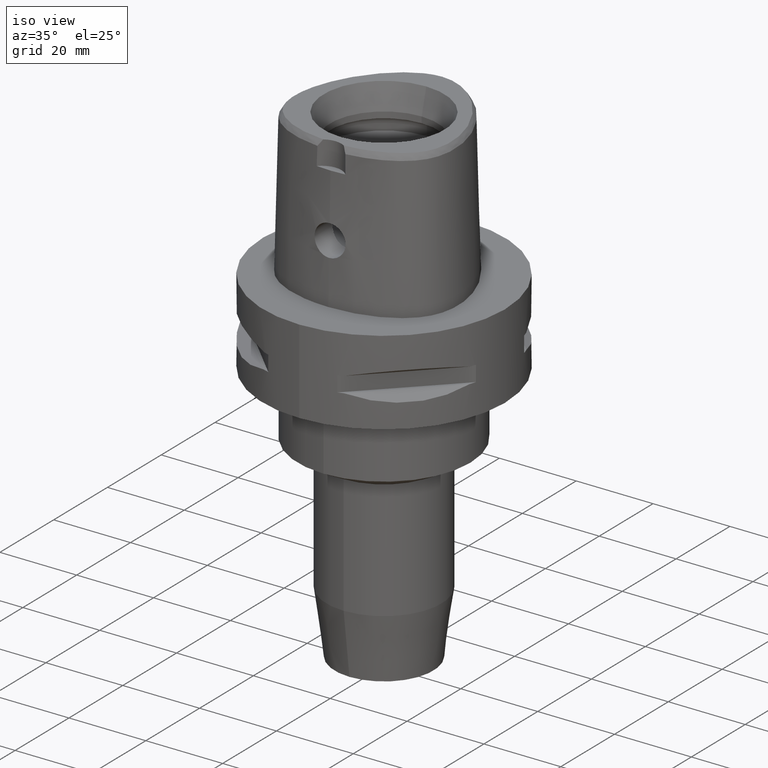
[diagram: clean part render]
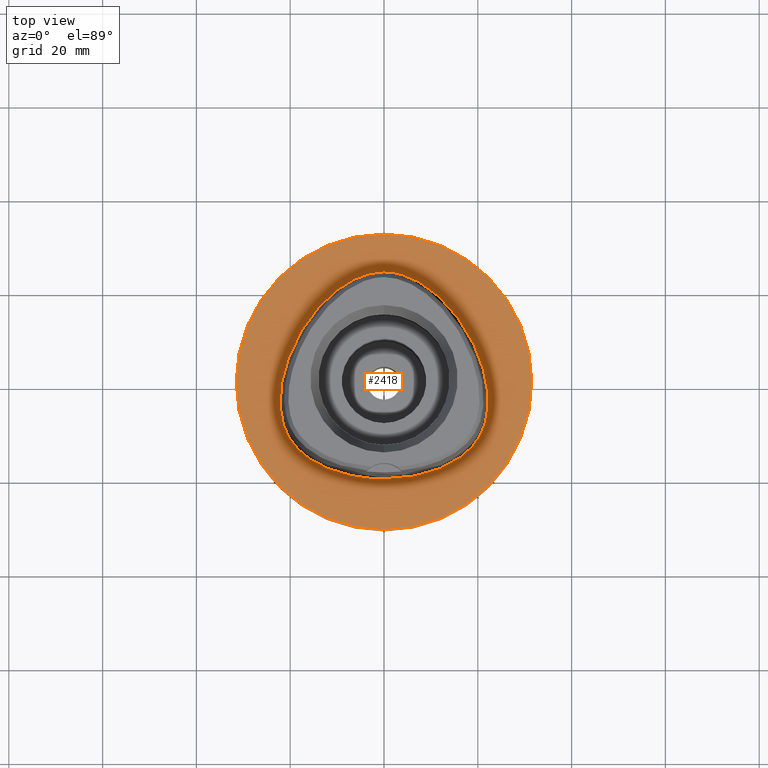
[diagram: tour spotlight — one face highlighted and labeled with its STEP entity id]
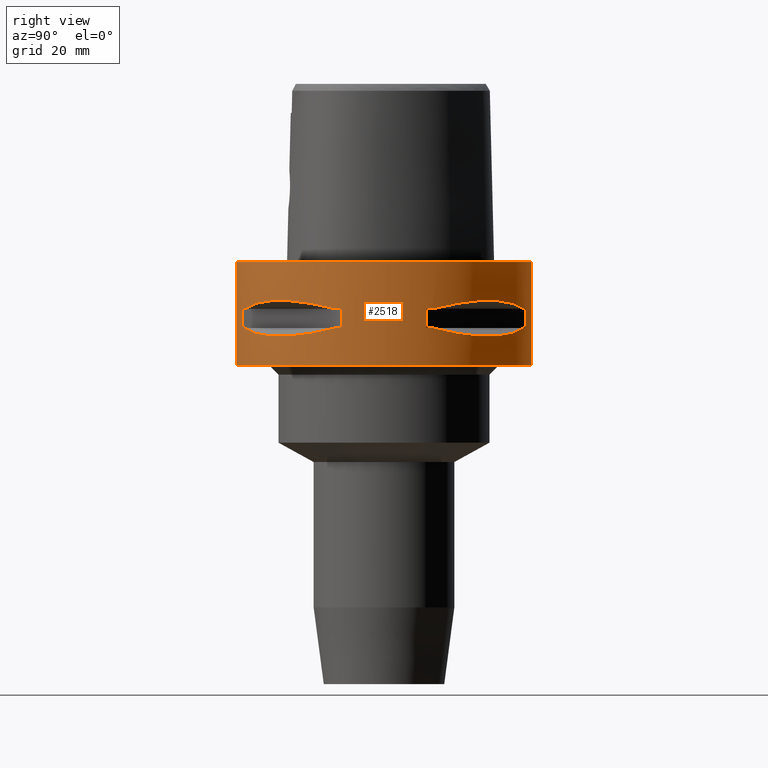
[diagram: tour spotlight — one face highlighted and labeled with its STEP entity id]
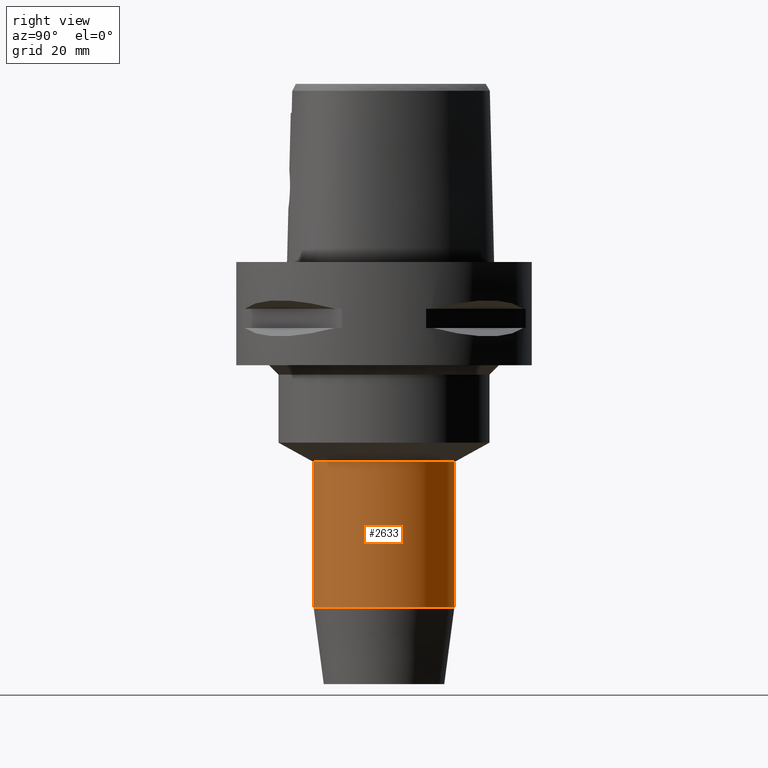
[diagram: tour spotlight — one face highlighted and labeled with its STEP entity id]
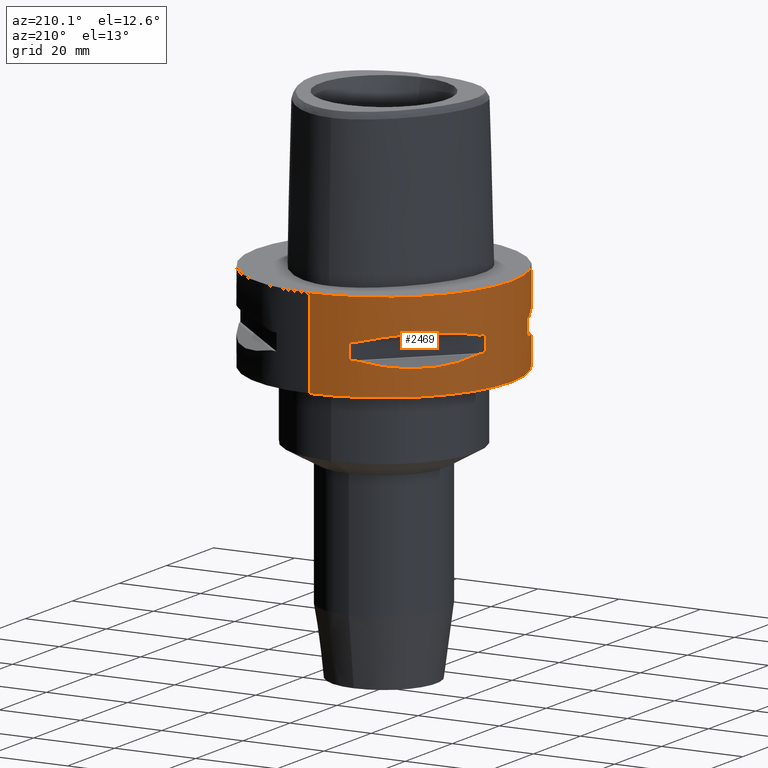
[diagram: tour spotlight — one face highlighted and labeled with its STEP entity id]
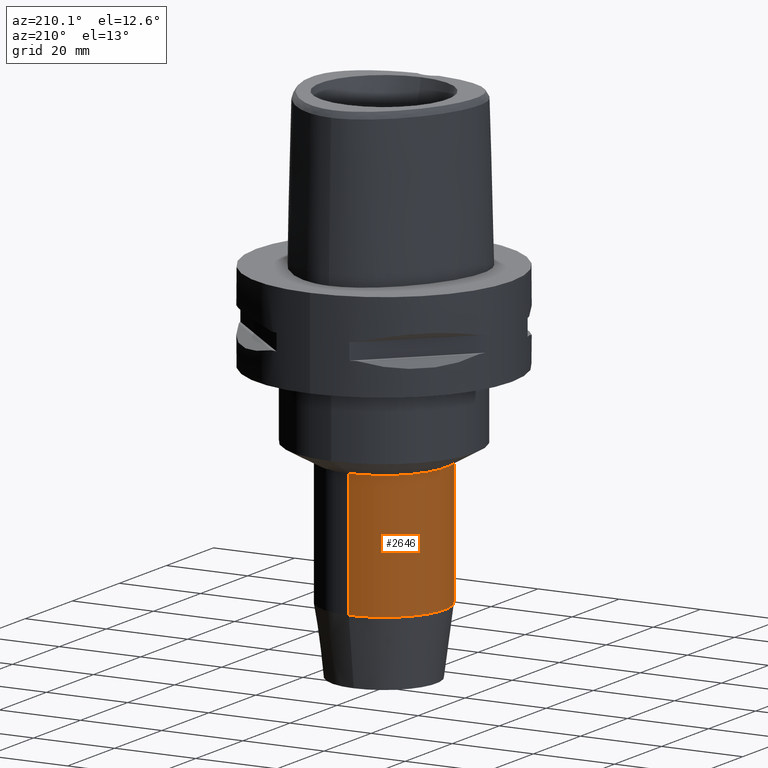
[diagram: tour spotlight — one face highlighted and labeled with its STEP entity id]
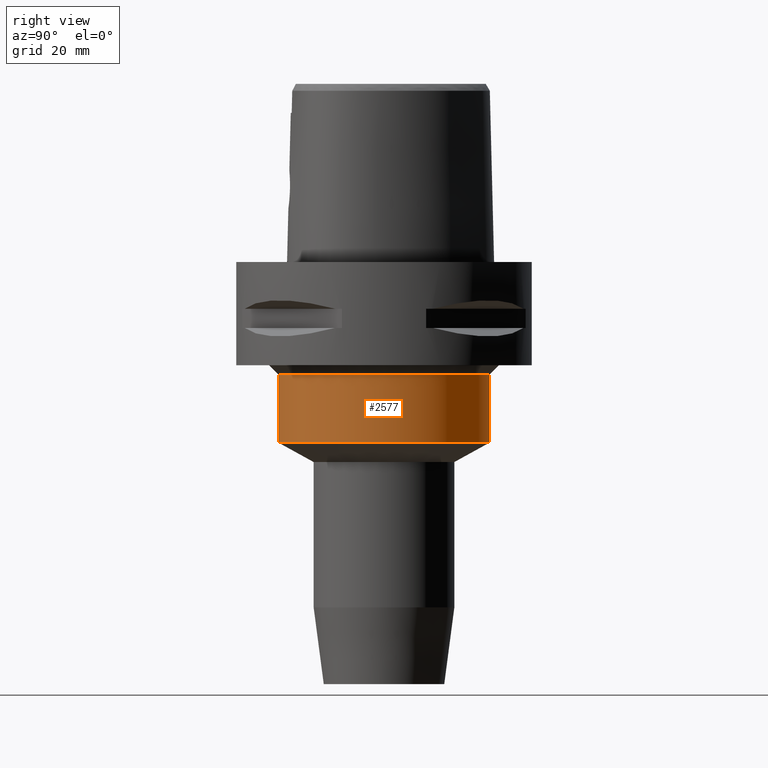
[diagram: tour spotlight — one face highlighted and labeled with its STEP entity id]
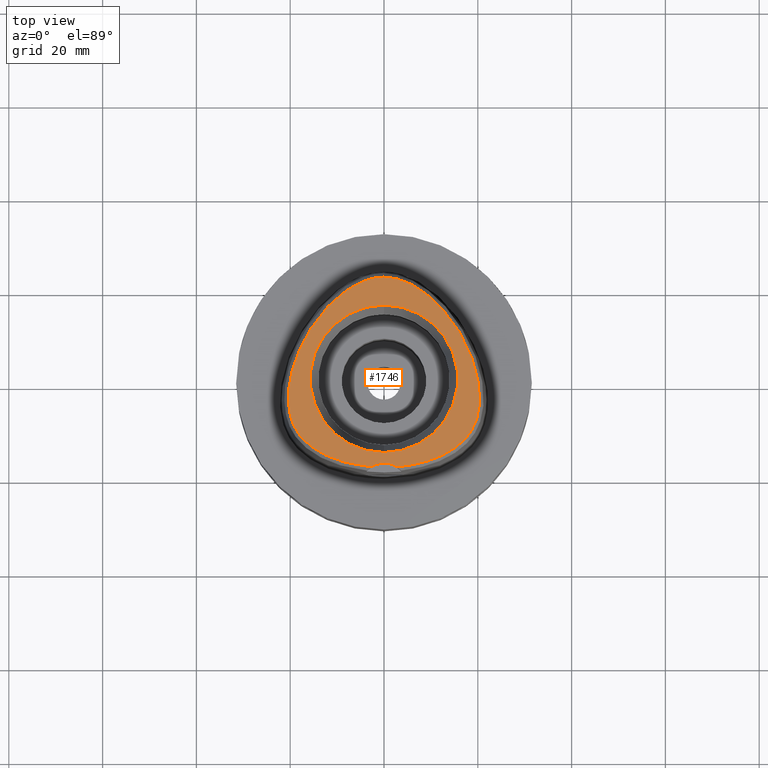
[diagram: tour spotlight — one face highlighted and labeled with its STEP entity id]
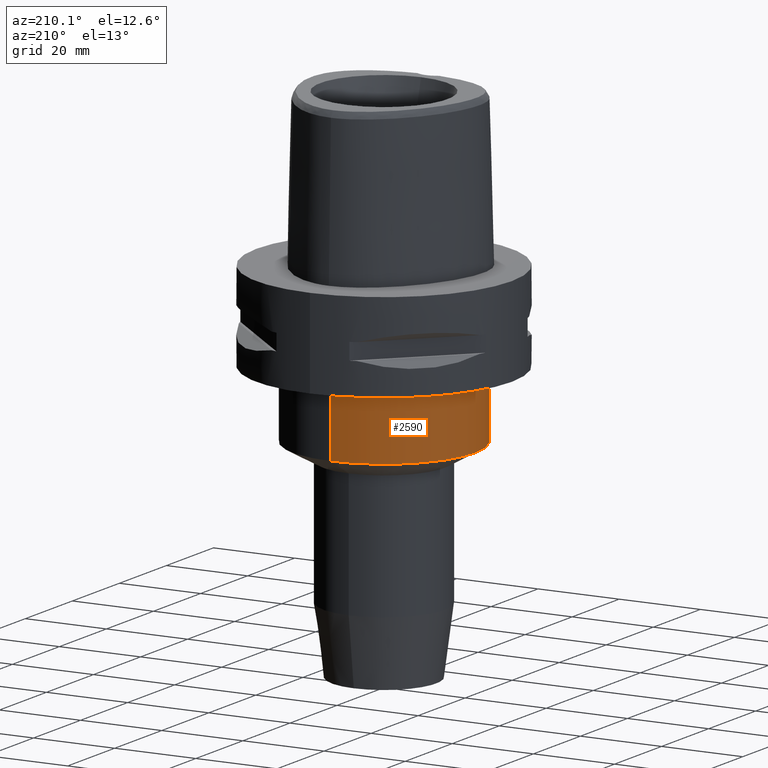
[diagram: tour spotlight — one face highlighted and labeled with its STEP entity id]
A machine part: a face-by-face anatomy tour. The part has 71 B-rep faces; the first image is the clean iso view, then the 8 largest visible faces are spotlighted one at a time (largest first), each with its STEP entity span.

Face 1 — top view, entity #2418. In plain terms, the highlighted planar face has unit normal (0, 0, -1).
Definition (entity closure, byte-faithful):
#292=CARTESIAN_POINT('',(0.E0,1.279755905109E-14,0.E0));
#293=DIRECTION('',(0.E0,0.E0,-1.E0));
#294=DIRECTION('',(0.E0,-1.E0,0.E0));
#295=AXIS2_PLACEMENT_3D('',#292,#293,#294);
#300=CARTESIAN_POINT('',(0.E0,1.279755905109E-14,0.E0));
#301=DIRECTION('',(0.E0,0.E0,-1.E0));
#302=DIRECTION('',(0.E0,1.E0,0.E0));
#303=AXIS2_PLACEMENT_3D('',#300,#301,#302);
#308=CARTESIAN_POINT('',(-1.042700578910E-11,-2.0675E1,1.260473207291E-13));
#309=CARTESIAN_POINT('',(9.158423632127E-1,-2.0675E1,1.260473207291E-13));
#310=CARTESIAN_POINT('',(2.716408396290E0,-2.060526959758E1,
-5.849876513417E-14));
#311=CARTESIAN_POINT('',(5.360849041373E0,-2.029895710666E1,
1.567469687592E-14));
#312=CARTESIAN_POINT('',(7.838067988409E0,-1.981278372945E1,0.E0));
#313=CARTESIAN_POINT('',(1.010273943016E1,-1.917806078717E1,0.E0));
#314=CARTESIAN_POINT('',(1.212665494295E1,-1.842788899745E1,0.E0));
#315=CARTESIAN_POINT('',(1.390528348451E1,-1.759281504158E1,0.E0));
#316=CARTESIAN_POINT('',(1.544933729303E1,-1.669720468576E1,0.E0));
#317=CARTESIAN_POINT('',(1.677709919822E1,-1.575929356149E1,0.E0));
#318=CARTESIAN_POINT('',(1.791070168285E1,-1.479064588104E1,0.E0));
#319=CARTESIAN_POINT('',(1.887150357261E1,-1.379790189981E1,0.E0));
#320=CARTESIAN_POINT('',(1.967839891391E1,-1.278369248367E1,0.E0));
#321=CARTESIAN_POINT('',(2.034936091072E1,-1.174528212922E1,0.E0));
#322=CARTESIAN_POINT('',(2.091159017696E1,-1.064674429548E1,0.E0));
#323=CARTESIAN_POINT('',(2.138527596063E1,-9.443658971421E0,0.E0));
#324=CARTESIAN_POINT('',(2.176498967857E1,-8.113513566853E0,0.E0));
#325=CARTESIAN_POINT('',(2.203671366422E1,-6.648064250119E0,0.E0));
#326=CARTESIAN_POINT('',(2.218501817423E1,-5.028396779116E0,0.E0));
#327=CARTESIAN_POINT('',(2.218834029708E1,-3.242572919162E0,0.E0));
#328=CARTESIAN_POINT('',(2.202182546398E1,-1.283710492373E0,0.E0));
#329=CARTESIAN_POINT('',(2.165887442516E1,8.453603315041E-1,0.E0));
#330=CARTESIAN_POINT('',(2.107560380030E1,3.124759078297E0,0.E0));
#331=CARTESIAN_POINT('',(2.025646054374E1,5.515187041283E0,0.E0));
#332=CARTESIAN_POINT('',(1.920073190327E1,7.955493648483E0,0.E0));
#333=CARTESIAN_POINT('',(1.792967904165E1,1.036468909786E1,0.E0));
#334=CARTESIAN_POINT('',(1.647710613861E1,1.266943998868E1,0.E0));
#335=CARTESIAN_POINT('',(1.489108143112E1,1.480166284189E1,0.E0));
#336=CARTESIAN_POINT('',(1.323030500653E1,1.670402183110E1,0.E0));
#337=CARTESIAN_POINT('',(1.154826681381E1,1.834637767515E1,0.E0));
#338=CARTESIAN_POINT('',(9.886689898431E0,1.972279202940E1,0.E0));
#339=CARTESIAN_POINT('',(8.274412956713E0,2.084428429182E1,0.E0));
#340=CARTESIAN_POINT('',(6.727228941433E0,2.173241213456E1,0.E0));
#341=CARTESIAN_POINT('',(5.251300805533E0,2.241232518975E1,0.E0));
#342=CARTESIAN_POINT('',(3.846167454410E0,2.290873349726E1,0.E0));
#343=CARTESIAN_POINT('',(2.506219438544E0,2.324356530458E1,1.531573435204E-14));
#344=CARTESIAN_POINT('',(1.225948313824E0,2.343451067084E1,
-5.715909875705E-14));
#345=CARTESIAN_POINT('',(4.030405167291E-1,2.347499999999E1,
1.231607408651E-13));
#346=CARTESIAN_POINT('',(5.537127096753E-11,2.347499999999E1,
1.231607408651E-13));
#351=CARTESIAN_POINT('',(5.537127096753E-11,2.347499999999E1,
1.231607408651E-13));
#352=CARTESIAN_POINT('',(-4.030501311829E-1,2.347499999999E1,
1.231607408651E-13));
#353=CARTESIAN_POINT('',(-1.225941998255E0,2.343451160779E1,
-5.715909875705E-14));
#354=CARTESIAN_POINT('',(-2.506176665873E0,2.324356707891E1,
1.531573435204E-14));
#355=CARTESIAN_POINT('',(-3.845796668515E0,2.290883543718E1,0.E0));
#356=CARTESIAN_POINT('',(-5.250746147550E0,2.241254569104E1,0.E0));
#357=CARTESIAN_POINT('',(-6.726516064720E0,2.173277639394E1,0.E0));
#358=CARTESIAN_POINT('',(-8.273641246778E0,2.084477362547E1,0.E0));
#359=CARTESIAN_POINT('',(-9.885913422893E0,1.972338100359E1,0.E0));
#360=CARTESIAN_POINT('',(-1.154744726761E1,1.834711606382E1,0.E0));
#361=CARTESIAN_POINT('',(-1.322945947941E1,1.670490312677E1,0.E0));
#362=CARTESIAN_POINT('',(-1.488998375980E1,1.480301826078E1,0.E0));
#363=CARTESIAN_POINT('',(-1.647600663520E1,1.267100928078E1,0.E0));
#364=CARTESIAN_POINT('',(-1.792806340323E1,1.036743994302E1,0.E0));
#365=CARTESIAN_POINT('',(-1.919922487795E1,7.958616034095E0,0.E0));
#366=CARTESIAN_POINT('',(-2.025496370791E1,5.518994401160E0,0.E0));
#367=CARTESIAN_POINT('',(-2.107426163142E1,3.129172675913E0,0.E0));
#368=CARTESIAN_POINT('',(-2.165777423345E1,8.504171987544E-1,0.E0));
#369=CARTESIAN_POINT('',(-2.202111550992E1,-1.278299047426E0,0.E0));
#370=CARTESIAN_POINT('',(-2.218808757016E1,-3.236928503894E0,0.E0));
#371=CARTESIAN_POINT('',(-2.218526770248E1,-5.022718452614E0,0.E0));
#372=CARTESIAN_POINT('',(-2.203747271344E1,-6.642517845331E0,0.E0));
#373=CARTESIAN_POINT('',(-2.176617229092E1,-8.108523993479E0,0.E0));
#374=CARTESIAN_POINT('',(-2.138677834896E1,-9.439129148101E0,0.E0));
#375=CARTESIAN_POINT('',(-2.091376839585E1,-1.064202520385E1,0.E0));
#376=CARTESIAN_POINT('',(-2.035024914663E1,-1.174401299512E1,0.E0));
#377=CARTESIAN_POINT('',(-1.967806989895E1,-1.278412507066E1,0.E0));
#378=CARTESIAN_POINT('',(-1.887223540840E1,-1.379701833718E1,0.E0));
#379=CARTESIAN_POINT('',(-1.791140476887E1,-1.478999919802E1,0.E0));
#380=CARTESIAN_POINT('',(-1.677813911649E1,-1.575847054695E1,0.E0));
#381=CARTESIAN_POINT('',(-1.545062996871E1,-1.669637509083E1,0.E0));
#382=CARTESIAN_POINT('',(-1.390671501554E1,-1.759207676081E1,0.E0));
#383=CARTESIAN_POINT('',(-1.212778375120E1,-1.842742743536E1,0.E0));
#384=CARTESIAN_POINT('',(-1.010373641256E1,-1.917775025560E1,0.E0));
#385=CARTESIAN_POINT('',(-7.838492822532E0,-1.981269760954E1,0.E0));
#386=CARTESIAN_POINT('',(-5.361005632779E0,-2.029893781401E1,
1.567469687592E-14));
#387=CARTESIAN_POINT('',(-2.716376248306E0,-2.060527506761E1,
-5.849876513417E-14));
#388=CARTESIAN_POINT('',(-9.158142642990E-1,-2.0675E1,1.260473207291E-13));
#389=CARTESIAN_POINT('',(-1.042700578910E-11,-2.0675E1,1.260473207291E-13));
#1570=VERTEX_POINT('',#351);
#1571=VERTEX_POINT('',#389);
#1576=CARTESIAN_POINT('',(0.E0,-3.15E1,0.E0));
#1577=CARTESIAN_POINT('',(0.E0,3.15E1,0.E0));
#1578=VERTEX_POINT('',#1576);
#1579=VERTEX_POINT('',#1577);
#2402=CARTESIAN_POINT('',(0.E0,1.224646799147E-14,0.E0));
#2403=DIRECTION('',(0.E0,0.E0,-1.E0));
#2404=DIRECTION('',(0.E0,-1.E0,0.E0));
#2405=AXIS2_PLACEMENT_3D('',#2402,#2403,#2404);
#2406=PLANE('',#2405);
#2408=ORIENTED_EDGE('',*,*,#2407,.T.);
#2410=ORIENTED_EDGE('',*,*,#2409,.T.);
#2411=EDGE_LOOP('',(#2408,#2410));
#2412=FACE_OUTER_BOUND('',#2411,.F.);
#2414=ORIENTED_EDGE('',*,*,#2413,.T.);
#2415=ORIENTED_EDGE('',*,*,#2385,.T.);
#2416=EDGE_LOOP('',(#2414,#2415));
#2417=FACE_BOUND('',#2416,.F.);
#296=CIRCLE('',#295,3.15E1);
#304=CIRCLE('',#303,3.15E1);
#347=B_SPLINE_CURVE_WITH_KNOTS('',3,(#308,#309,#310,#311,#312,#313,#314,#315,
#316,#317,#318,#319,#320,#321,#322,#323,#324,#325,#326,#327,#328,#329,#330,#331,
#332,#333,#334,#335,#336,#337,#338,#339,#340,#341,#342,#343,#344,#345,#346),
.UNSPECIFIED.,.F.,.F.,(4,1,1,1,1,1,1,1,1,1,1,1,1,1,1,1,1,1,1,1,1,1,1,1,1,1,1,1,
1,1,1,1,1,1,1,1,4),(0.E0,2.777777777778E-2,5.555555555556E-2,8.333333333333E-2,
1.111111111111E-1,1.388888888889E-1,1.666666666667E-1,1.944444444444E-1,
2.222222222222E-1,2.5E-1,2.777777777778E-1,3.055555555556E-1,3.333333333333E-1,
3.611111111111E-1,3.888888888889E-1,4.166666666667E-1,4.444444444444E-1,
4.722222222222E-1,5.E-1,5.277777777778E-1,5.555555555556E-1,5.833333333333E-1,
6.111111111111E-1,6.388888888889E-1,6.666666666667E-1,6.944444444444E-1,
7.222222222222E-1,7.5E-1,7.777777777778E-1,8.055555555556E-1,8.333333333333E-1,
8.611111111111E-1,8.888888888889E-1,9.166666666667E-1,9.444444444444E-1,
9.722222222222E-1,1.E0),.UNSPECIFIED.);
#390=B_SPLINE_CURVE_WITH_KNOTS('',3,(#351,#352,#353,#354,#355,#356,#357,#358,
#359,#360,#361,#362,#363,#364,#365,#366,#367,#368,#369,#370,#371,#372,#373,#374,
#375,#376,#377,#378,#379,#380,#381,#382,#383,#384,#385,#386,#387,#388,#389),
.UNSPECIFIED.,.F.,.F.,(4,1,1,1,1,1,1,1,1,1,1,1,1,1,1,1,1,1,1,1,1,1,1,1,1,1,1,1,
1,1,1,1,1,1,1,1,4),(0.E0,2.777777777778E-2,5.555555555556E-2,8.333333333333E-2,
1.111111111111E-1,1.388888888889E-1,1.666666666667E-1,1.944444444444E-1,
2.222222222222E-1,2.5E-1,2.777777777778E-1,3.055555555556E-1,3.333333333333E-1,
3.611111111111E-1,3.888888888889E-1,4.166666666667E-1,4.444444444444E-1,
4.722222222222E-1,5.E-1,5.277777777778E-1,5.555555555556E-1,5.833333333333E-1,
6.111111111111E-1,6.388888888889E-1,6.666666666667E-1,6.944444444444E-1,
7.222222222222E-1,7.5E-1,7.777777777778E-1,8.055555555556E-1,8.333333333333E-1,
8.611111111111E-1,8.888888888889E-1,9.166666666667E-1,9.444444444444E-1,
9.722222222222E-1,1.E0),.UNSPECIFIED.);
#2385=EDGE_CURVE('',#1570,#1571,#390,.T.);
#2407=EDGE_CURVE('',#1578,#1579,#296,.T.);
#2409=EDGE_CURVE('',#1579,#1578,#304,.T.);
#2413=EDGE_CURVE('',#1571,#1570,#347,.T.);
#2418=ADVANCED_FACE('',(#2412,#2417),#2406,.F.);

Face 2 — right view, entity #2518. In plain terms, the highlighted cylindrical surface (partial cylindrical patch) has radius 31.5 mm, axis along (0, 0, -1).
Definition (entity closure, byte-faithful):
#300=CARTESIAN_POINT('',(0.E0,1.279755905109E-14,0.E0));
#301=DIRECTION('',(0.E0,0.E0,-1.E0));
#302=DIRECTION('',(0.E0,1.E0,0.E0));
#303=AXIS2_PLACEMENT_3D('',#300,#301,#302);
#394=DIRECTION('',(0.E0,0.E0,-1.E0));
#395=VECTOR('',#394,2.2E1);
#396=CARTESIAN_POINT('',(0.E0,-3.15E1,0.E0));
#397=LINE('',#396,#395);
#451=DIRECTION('',(0.E0,0.E0,-1.E0));
#452=VECTOR('',#451,2.2E1);
#453=CARTESIAN_POINT('',(0.E0,3.15E1,0.E0));
#454=LINE('',#453,#452);
#458=DIRECTION('',(0.E0,0.E0,-1.E0));
#459=VECTOR('',#458,4.1E0);
#460=CARTESIAN_POINT('',(8.981198972018E0,-3.019251670572E1,-9.95E0));
#461=LINE('',#460,#459);
#465=CARTESIAN_POINT('',(1.044775724750E1,-2.971690375018E1,-1.405E1));
#466=CARTESIAN_POINT('',(1.282388988809E1,-2.888151197365E1,-1.467900482380E1));
#467=CARTESIAN_POINT('',(1.711282138769E1,-2.674739463903E1,-1.555870402292E1));
#468=CARTESIAN_POINT('',(2.244574140438E1,-2.244574140438E1,-1.597971692370E1));
#469=CARTESIAN_POINT('',(2.674739463903E1,-1.711282138769E1,-1.555870402292E1));
#470=CARTESIAN_POINT('',(2.888151197365E1,-1.282388988809E1,-1.467900482380E1));
#471=CARTESIAN_POINT('',(2.971690375018E1,-1.044775724750E1,-1.405E1));
#476=DIRECTION('',(0.E0,0.E0,1.E0));
#477=VECTOR('',#476,4.1E0);
#478=CARTESIAN_POINT('',(3.019251670572E1,-8.981198972018E0,-1.405E1));
#479=LINE('',#478,#477);
#483=DIRECTION('',(0.E0,0.E0,-1.E0));
#484=VECTOR('',#483,4.1E0);
#485=CARTESIAN_POINT('',(3.019251670572E1,8.981198972018E0,-9.95E0));
#486=LINE('',#485,#484);
#490=CARTESIAN_POINT('',(2.971690375018E1,1.044775724750E1,-1.405E1));
#491=CARTESIAN_POINT('',(2.888151197365E1,1.282388988809E1,-1.467900482380E1));
#492=CARTESIAN_POINT('',(2.674739463903E1,1.711282138769E1,-1.555870402292E1));
#493=CARTESIAN_POINT('',(2.244574140438E1,2.244574140438E1,-1.597971692370E1));
#494=CARTESIAN_POINT('',(1.711282138769E1,2.674739463903E1,-1.555870402292E1));
#495=CARTESIAN_POINT('',(1.282388988809E1,2.888151197365E1,-1.467900482380E1));
#496=CARTESIAN_POINT('',(1.044775724750E1,2.971690375018E1,-1.405E1));
#501=DIRECTION('',(0.E0,0.E0,1.E0));
#502=VECTOR('',#501,4.1E0);
#503=CARTESIAN_POINT('',(8.981198972018E0,3.019251670572E1,-1.405E1));
#504=LINE('',#503,#502);
#508=CARTESIAN_POINT('',(0.E0,1.279755905109E-14,-2.2E1));
#509=DIRECTION('',(0.E0,0.E0,1.E0));
#510=DIRECTION('',(0.E0,-1.E0,0.E0));
#511=AXIS2_PLACEMENT_3D('',#508,#509,#510);
#1266=CARTESIAN_POINT('',(1.044775724750E1,-2.971690375018E1,
-9.949999999999E0));
#1267=CARTESIAN_POINT('',(1.282388988809E1,-2.888151197365E1,
-9.320995176198E0));
#1268=CARTESIAN_POINT('',(1.711282138769E1,-2.674739463903E1,
-8.441295977074E0));
#1269=CARTESIAN_POINT('',(2.244574140438E1,-2.244574140438E1,
-8.020283076294E0));
#1270=CARTESIAN_POINT('',(2.674739463903E1,-1.711282138769E1,
-8.441295977074E0));
#1271=CARTESIAN_POINT('',(2.888151197365E1,-1.282388988809E1,
-9.320995176198E0));
#1272=CARTESIAN_POINT('',(2.971690375018E1,-1.044775724750E1,
-9.949999999999E0));
#1277=CARTESIAN_POINT('',(0.E0,1.279755905109E-14,-9.95E0));
#1278=DIRECTION('',(0.E0,0.E0,1.E0));
#1279=DIRECTION('',(9.433937698469E-1,-3.316748332541E-1,0.E0));
#1280=AXIS2_PLACEMENT_3D('',#1277,#1278,#1279);
#1285=CARTESIAN_POINT('',(0.E0,1.279755905109E-14,-9.95E0));
#1286=DIRECTION('',(0.E0,0.E0,1.E0));
#1287=DIRECTION('',(2.851174276832E-1,-9.584925938323E-1,0.E0));
#1288=AXIS2_PLACEMENT_3D('',#1285,#1286,#1287);
#1307=CARTESIAN_POINT('',(0.E0,1.279755905109E-14,-1.405E1));
#1308=DIRECTION('',(0.E0,0.E0,-1.E0));
#1309=DIRECTION('',(9.584925938323E-1,-2.851174276832E-1,0.E0));
#1310=AXIS2_PLACEMENT_3D('',#1307,#1308,#1309);
#1315=CARTESIAN_POINT('',(0.E0,1.279755905109E-14,-1.405E1));
#1316=DIRECTION('',(0.E0,0.E0,-1.E0));
#1317=DIRECTION('',(3.316748332541E-1,-9.433937698469E-1,0.E0));
#1318=AXIS2_PLACEMENT_3D('',#1315,#1316,#1317);
#1337=CARTESIAN_POINT('',(2.971690375018E1,1.044775724750E1,-9.949999999999E0));
#1338=CARTESIAN_POINT('',(2.888151197365E1,1.282388988809E1,-9.320995176198E0));
#1339=CARTESIAN_POINT('',(2.674739463903E1,1.711282138769E1,-8.441295977074E0));
#1340=CARTESIAN_POINT('',(2.244574140438E1,2.244574140438E1,-8.020283076294E0));
#1341=CARTESIAN_POINT('',(1.711282138769E1,2.674739463903E1,-8.441295977074E0));
#1342=CARTESIAN_POINT('',(1.282388988809E1,2.888151197365E1,-9.320995176198E0));
#1343=CARTESIAN_POINT('',(1.044775724750E1,2.971690375018E1,-9.949999999999E0));
#1348=CARTESIAN_POINT('',(0.E0,1.279755905109E-14,-9.95E0));
#1349=DIRECTION('',(0.E0,0.E0,1.E0));
#1350=DIRECTION('',(3.316748332541E-1,9.433937698469E-1,0.E0));
#1351=AXIS2_PLACEMENT_3D('',#1348,#1349,#1350);
#1356=CARTESIAN_POINT('',(0.E0,1.279755905109E-14,-9.95E0));
#1357=DIRECTION('',(0.E0,0.E0,1.E0));
#1358=DIRECTION('',(9.584925938323E-1,2.851174276832E-1,0.E0));
#1359=AXIS2_PLACEMENT_3D('',#1356,#1357,#1358);
#1378=CARTESIAN_POINT('',(0.E0,1.279755905109E-14,-1.405E1));
#1379=DIRECTION('',(0.E0,0.E0,-1.E0));
#1380=DIRECTION('',(2.851174276832E-1,9.584925938323E-1,0.E0));
#1381=AXIS2_PLACEMENT_3D('',#1378,#1379,#1380);
#1386=CARTESIAN_POINT('',(0.E0,1.279755905109E-14,-1.405E1));
#1387=DIRECTION('',(0.E0,0.E0,-1.E0));
#1388=DIRECTION('',(9.433937698469E-1,3.316748332541E-1,0.E0));
#1389=AXIS2_PLACEMENT_3D('',#1386,#1387,#1388);
#1576=CARTESIAN_POINT('',(0.E0,-3.15E1,0.E0));
#1577=CARTESIAN_POINT('',(0.E0,3.15E1,0.E0));
#1578=VERTEX_POINT('',#1576);
#1579=VERTEX_POINT('',#1577);
#1580=CARTESIAN_POINT('',(0.E0,3.15E1,-2.2E1));
#1581=VERTEX_POINT('',#1580);
#1582=CARTESIAN_POINT('',(0.E0,-3.15E1,-2.2E1));
#1583=VERTEX_POINT('',#1582);
#1610=VERTEX_POINT('',#1266);
#1611=VERTEX_POINT('',#1272);
#1612=CARTESIAN_POINT('',(8.981198972020E0,-3.019251670572E1,-9.95E0));
#1613=VERTEX_POINT('',#1612);
#1614=CARTESIAN_POINT('',(8.981198972018E0,-3.019251670572E1,-1.405E1));
#1615=VERTEX_POINT('',#1614);
#1616=CARTESIAN_POINT('',(1.044775724750E1,-2.971690375018E1,-1.405E1));
#1617=VERTEX_POINT('',#1616);
#1618=VERTEX_POINT('',#471);
#1619=CARTESIAN_POINT('',(3.019251670572E1,-8.981198972020E0,-1.405E1));
#1620=VERTEX_POINT('',#1619);
#1621=CARTESIAN_POINT('',(3.019251670572E1,-8.981198972018E0,-9.95E0));
#1622=VERTEX_POINT('',#1621);
#1623=VERTEX_POINT('',#1337);
#1624=VERTEX_POINT('',#1343);
#1625=CARTESIAN_POINT('',(3.019251670572E1,8.981198972020E0,-9.95E0));
#1626=VERTEX_POINT('',#1625);
#1627=CARTESIAN_POINT('',(3.019251670572E1,8.981198972018E0,-1.405E1));
#1628=VERTEX_POINT('',#1627);
#1629=CARTESIAN_POINT('',(2.971690375018E1,1.044775724750E1,-1.405E1));
#1630=VERTEX_POINT('',#1629);
#1631=VERTEX_POINT('',#496);
#1632=CARTESIAN_POINT('',(8.981198972020E0,3.019251670572E1,-1.405E1));
#1633=VERTEX_POINT('',#1632);
#1634=CARTESIAN_POINT('',(8.981198972018E0,3.019251670572E1,-9.95E0));
#1635=VERTEX_POINT('',#1634);
#2470=CARTESIAN_POINT('',(0.E0,1.279755905109E-14,4.5E0));
#2471=DIRECTION('',(0.E0,0.E0,-1.E0));
#2472=DIRECTION('',(0.E0,-1.E0,0.E0));
#2473=AXIS2_PLACEMENT_3D('',#2470,#2471,#2472);
#2474=CYLINDRICAL_SURFACE('',#2473,3.15E1);
#2475=ORIENTED_EDGE('',*,*,#2424,.T.);
#2477=ORIENTED_EDGE('',*,*,#2476,.F.);
#2478=ORIENTED_EDGE('',*,*,#2427,.F.);
#2479=ORIENTED_EDGE('',*,*,#2409,.F.);
#2480=EDGE_LOOP('',(#2475,#2477,#2478,#2479));
#2481=FACE_OUTER_BOUND('',#2480,.F.);
#2483=ORIENTED_EDGE('',*,*,#2482,.F.);
#2485=ORIENTED_EDGE('',*,*,#2484,.F.);
#2487=ORIENTED_EDGE('',*,*,#2486,.T.);
#2489=ORIENTED_EDGE('',*,*,#2488,.F.);
#2491=ORIENTED_EDGE('',*,*,#2490,.T.);
#2493=ORIENTED_EDGE('',*,*,#2492,.F.);
#2495=ORIENTED_EDGE('',*,*,#2494,.T.);
#2497=ORIENTED_EDGE('',*,*,#2496,.F.);
#2498=EDGE_LOOP('',(#2483,#2485,#2487,#2489,#2491,#2493,#2495,#2497));
#2499=FACE_BOUND('',#2498,.F.);
#2501=ORIENTED_EDGE('',*,*,#2500,.F.);
#2503=ORIENTED_EDGE('',*,*,#2502,.F.);
#2505=ORIENTED_EDGE('',*,*,#2504,.T.);
#2507=ORIENTED_EDGE('',*,*,#2506,.F.);
#2509=ORIENTED_EDGE('',*,*,#2508,.T.);
#2511=ORIENTED_EDGE('',*,*,#2510,.F.);
#2513=ORIENTED_EDGE('',*,*,#2512,.T.);
#2515=ORIENTED_EDGE('',*,*,#2514,.F.);
#2516=EDGE_LOOP('',(#2501,#2503,#2505,#2507,#2509,#2511,#2513,#2515));
#2517=FACE_BOUND('',#2516,.F.);
#304=CIRCLE('',#303,3.15E1);
#472=B_SPLINE_CURVE_WITH_KNOTS('',3,(#465,#466,#467,#468,#469,#470,#471),
.UNSPECIFIED.,.F.,.F.,(4,1,1,1,4),(0.E0,2.5E-1,5.E-1,7.5E-1,1.E0),
.UNSPECIFIED.);
#497=B_SPLINE_CURVE_WITH_KNOTS('',3,(#490,#491,#492,#493,#494,#495,#496),
.UNSPECIFIED.,.F.,.F.,(4,1,1,1,4),(0.E0,2.5E-1,5.E-1,7.5E-1,1.E0),
.UNSPECIFIED.);
#512=CIRCLE('',#511,3.15E1);
#1273=B_SPLINE_CURVE_WITH_KNOTS('',3,(#1266,#1267,#1268,#1269,#1270,#1271,
#1272),.UNSPECIFIED.,.F.,.F.,(4,1,1,1,4),(0.E0,2.5E-1,5.E-1,7.5E-1,1.E0),
.UNSPECIFIED.);
#1281=CIRCLE('',#1280,3.15E1);
#1289=CIRCLE('',#1288,3.15E1);
#1311=CIRCLE('',#1310,3.15E1);
#1319=CIRCLE('',#1318,3.15E1);
#1344=B_SPLINE_CURVE_WITH_KNOTS('',3,(#1337,#1338,#1339,#1340,#1341,#1342,
#1343),.UNSPECIFIED.,.F.,.F.,(4,1,1,1,4),(0.E0,2.5E-1,5.E-1,7.5E-1,1.E0),
.UNSPECIFIED.);
#1352=CIRCLE('',#1351,3.15E1);
#1360=CIRCLE('',#1359,3.15E1);
#1382=CIRCLE('',#1381,3.15E1);
#1390=CIRCLE('',#1389,3.15E1);
#2409=EDGE_CURVE('',#1579,#1578,#304,.T.);
#2424=EDGE_CURVE('',#1579,#1581,#454,.T.);
#2427=EDGE_CURVE('',#1578,#1583,#397,.T.);
#2476=EDGE_CURVE('',#1583,#1581,#512,.T.);
#2482=EDGE_CURVE('',#1610,#1611,#1273,.T.);
#2484=EDGE_CURVE('',#1613,#1610,#1289,.T.);
#2486=EDGE_CURVE('',#1613,#1615,#461,.T.);
#2488=EDGE_CURVE('',#1617,#1615,#1319,.T.);
#2490=EDGE_CURVE('',#1617,#1618,#472,.T.);
#2492=EDGE_CURVE('',#1620,#1618,#1311,.T.);
#2494=EDGE_CURVE('',#1620,#1622,#479,.T.);
#2496=EDGE_CURVE('',#1611,#1622,#1281,.T.);
#2500=EDGE_CURVE('',#1623,#1624,#1344,.T.);
#2502=EDGE_CURVE('',#1626,#1623,#1360,.T.);
#2504=EDGE_CURVE('',#1626,#1628,#486,.T.);
#2506=EDGE_CURVE('',#1630,#1628,#1390,.T.);
#2508=EDGE_CURVE('',#1630,#1631,#497,.T.);
#2510=EDGE_CURVE('',#1633,#1631,#1382,.T.);
#2512=EDGE_CURVE('',#1633,#1635,#504,.T.);
#2514=EDGE_CURVE('',#1624,#1635,#1352,.T.);
#2518=ADVANCED_FACE('',(#2481,#2499,#2517),#2474,.T.);

Face 3 — right view, entity #2633. In plain terms, the highlighted cylindrical surface (partial cylindrical patch) has radius 15 mm, axis along (0, 0, -1).
Definition (entity closure, byte-faithful):
#614=CARTESIAN_POINT('',(0.E0,0.E0,-4.2637E1));
#615=DIRECTION('',(0.E0,0.E0,-1.E0));
#616=DIRECTION('',(0.E0,1.E0,0.E0));
#617=AXIS2_PLACEMENT_3D('',#614,#615,#616);
#630=DIRECTION('',(0.E0,4.257808103031E-14,-1.E0));
#631=VECTOR('',#630,3.099794776413E1);
#632=CARTESIAN_POINT('',(0.E0,1.5E1,-4.2637E1));
#633=LINE('',#632,#631);
#637=DIRECTION('',(0.E0,-4.257808103031E-14,-1.E0));
#638=VECTOR('',#637,3.099794776413E1);
#639=CARTESIAN_POINT('',(0.E0,-1.5E1,-4.2637E1));
#640=LINE('',#639,#638);
#666=CARTESIAN_POINT('',(0.E0,0.E0,-7.363494776413E1));
#667=DIRECTION('',(0.E0,0.E0,1.E0));
#668=DIRECTION('',(0.E0,-1.E0,0.E0));
#669=AXIS2_PLACEMENT_3D('',#666,#667,#668);
#1648=CARTESIAN_POINT('',(0.E0,1.5E1,-4.2637E1));
#1649=VERTEX_POINT('',#1648);
#1650=CARTESIAN_POINT('',(0.E0,-1.5E1,-4.2637E1));
#1651=VERTEX_POINT('',#1650);
#1652=CARTESIAN_POINT('',(0.E0,1.5E1,-7.363494776413E1));
#1653=VERTEX_POINT('',#1652);
#1654=CARTESIAN_POINT('',(0.E0,-1.5E1,-7.363494776413E1));
#1655=VERTEX_POINT('',#1654);
#2619=CARTESIAN_POINT('',(0.E0,1.279755905109E-14,4.5E0));
#2620=DIRECTION('',(0.E0,0.E0,-1.E0));
#2621=DIRECTION('',(0.E0,-1.E0,0.E0));
#2622=AXIS2_PLACEMENT_3D('',#2619,#2620,#2621);
#2623=CYLINDRICAL_SURFACE('',#2622,1.5E1);
#2625=ORIENTED_EDGE('',*,*,#2624,.T.);
#2627=ORIENTED_EDGE('',*,*,#2626,.F.);
#2629=ORIENTED_EDGE('',*,*,#2628,.F.);
#2630=ORIENTED_EDGE('',*,*,#2612,.F.);
#2631=EDGE_LOOP('',(#2625,#2627,#2629,#2630));
#2632=FACE_OUTER_BOUND('',#2631,.F.);
#618=CIRCLE('',#617,1.5E1);
#670=CIRCLE('',#669,1.5E1);
#2612=EDGE_CURVE('',#1649,#1651,#618,.T.);
#2624=EDGE_CURVE('',#1649,#1653,#633,.T.);
#2626=EDGE_CURVE('',#1655,#1653,#670,.T.);
#2628=EDGE_CURVE('',#1651,#1655,#640,.T.);
#2633=ADVANCED_FACE('',(#2632),#2623,.T.);

Face 4 — auxiliary view, entity #2469. In plain terms, the highlighted cylindrical surface (partial cylindrical patch) has radius 31.5 mm, axis along (0, 0, -1).
Definition (entity closure, byte-faithful):
#292=CARTESIAN_POINT('',(0.E0,1.279755905109E-14,0.E0));
#293=DIRECTION('',(0.E0,0.E0,-1.E0));
#294=DIRECTION('',(0.E0,-1.E0,0.E0));
#295=AXIS2_PLACEMENT_3D('',#292,#293,#294);
#394=DIRECTION('',(0.E0,0.E0,-1.E0));
#395=VECTOR('',#394,2.2E1);
#396=CARTESIAN_POINT('',(0.E0,-3.15E1,0.E0));
#397=LINE('',#396,#395);
#401=DIRECTION('',(0.E0,0.E0,-1.E0));
#402=VECTOR('',#401,4.1E0);
#403=CARTESIAN_POINT('',(-8.981198972018E0,3.019251670572E1,-9.95E0));
#404=LINE('',#403,#402);
#408=CARTESIAN_POINT('',(-1.044775724750E1,2.971690375018E1,-1.405E1));
#409=CARTESIAN_POINT('',(-1.282388988809E1,2.888151197365E1,-1.467900482380E1));
#410=CARTESIAN_POINT('',(-1.711282138769E1,2.674739463903E1,-1.555870402292E1));
#411=CARTESIAN_POINT('',(-2.244574140438E1,2.244574140438E1,-1.597971692370E1));
#412=CARTESIAN_POINT('',(-2.674739463903E1,1.711282138769E1,-1.555870402292E1));
#413=CARTESIAN_POINT('',(-2.888151197365E1,1.282388988809E1,-1.467900482380E1));
#414=CARTESIAN_POINT('',(-2.971690375018E1,1.044775724750E1,-1.405E1));
#419=DIRECTION('',(0.E0,0.E0,1.E0));
#420=VECTOR('',#419,4.1E0);
#421=CARTESIAN_POINT('',(-3.019251670572E1,8.981198972018E0,-1.405E1));
#422=LINE('',#421,#420);
#426=DIRECTION('',(0.E0,0.E0,-1.E0));
#427=VECTOR('',#426,4.1E0);
#428=CARTESIAN_POINT('',(-3.019251670572E1,-8.981198972018E0,-9.95E0));
#429=LINE('',#428,#427);
#433=CARTESIAN_POINT('',(-2.971690375018E1,-1.044775724750E1,-1.405E1));
#434=CARTESIAN_POINT('',(-2.888151197365E1,-1.282388988809E1,
-1.467900482380E1));
#435=CARTESIAN_POINT('',(-2.674739463903E1,-1.711282138769E1,
-1.555870402292E1));
#436=CARTESIAN_POINT('',(-2.244574140438E1,-2.244574140438E1,
-1.597971692370E1));
#437=CARTESIAN_POINT('',(-1.711282138769E1,-2.674739463903E1,
-1.555870402292E1));
#438=CARTESIAN_POINT('',(-1.282388988809E1,-2.888151197365E1,
-1.467900482380E1));
#439=CARTESIAN_POINT('',(-1.044775724750E1,-2.971690375018E1,-1.405E1));
#444=DIRECTION('',(0.E0,0.E0,1.E0));
#445=VECTOR('',#444,4.1E0);
#446=CARTESIAN_POINT('',(-8.981198972018E0,-3.019251670572E1,-1.405E1));
#447=LINE('',#446,#445);
#451=DIRECTION('',(0.E0,0.E0,-1.E0));
#452=VECTOR('',#451,2.2E1);
#453=CARTESIAN_POINT('',(0.E0,3.15E1,0.E0));
#454=LINE('',#453,#452);
#516=CARTESIAN_POINT('',(0.E0,1.279755905109E-14,-2.2E1));
#517=DIRECTION('',(0.E0,0.E0,1.E0));
#518=DIRECTION('',(0.E0,1.E0,0.E0));
#519=AXIS2_PLACEMENT_3D('',#516,#517,#518);
#1408=CARTESIAN_POINT('',(-1.044775724750E1,2.971690375018E1,
-9.949999999999E0));
#1409=CARTESIAN_POINT('',(-1.282388988809E1,2.888151197365E1,
-9.320995176198E0));
#1410=CARTESIAN_POINT('',(-1.711282138769E1,2.674739463903E1,
-8.441295977074E0));
#1411=CARTESIAN_POINT('',(-2.244574140438E1,2.244574140438E1,
-8.020283076294E0));
#1412=CARTESIAN_POINT('',(-2.674739463903E1,1.711282138769E1,
-8.441295977074E0));
#1413=CARTESIAN_POINT('',(-2.888151197365E1,1.282388988809E1,
-9.320995176198E0));
#1414=CARTESIAN_POINT('',(-2.971690375018E1,1.044775724750E1,
-9.949999999999E0));
#1419=CARTESIAN_POINT('',(0.E0,1.279755905109E-14,-9.95E0));
#1420=DIRECTION('',(0.E0,0.E0,1.E0));
#1421=DIRECTION('',(-9.433937698469E-1,3.316748332541E-1,0.E0));
#1422=AXIS2_PLACEMENT_3D('',#1419,#1420,#1421);
#1427=CARTESIAN_POINT('',(0.E0,1.279755905109E-14,-9.95E0));
#1428=DIRECTION('',(0.E0,0.E0,1.E0));
#1429=DIRECTION('',(-2.851174276832E-1,9.584925938323E-1,0.E0));
#1430=AXIS2_PLACEMENT_3D('',#1427,#1428,#1429);
#1449=CARTESIAN_POINT('',(0.E0,1.279755905109E-14,-1.405E1));
#1450=DIRECTION('',(0.E0,0.E0,-1.E0));
#1451=DIRECTION('',(-9.584925938323E-1,2.851174276832E-1,0.E0));
#1452=AXIS2_PLACEMENT_3D('',#1449,#1450,#1451);
#1457=CARTESIAN_POINT('',(0.E0,1.279755905109E-14,-1.405E1));
#1458=DIRECTION('',(0.E0,0.E0,-1.E0));
#1459=DIRECTION('',(-3.316748332541E-1,9.433937698469E-1,0.E0));
#1460=AXIS2_PLACEMENT_3D('',#1457,#1458,#1459);
#1479=CARTESIAN_POINT('',(-2.971690375018E1,-1.044775724750E1,
-9.949999999999E0));
#1480=CARTESIAN_POINT('',(-2.888151197365E1,-1.282388988809E1,
-9.320995176198E0));
#1481=CARTESIAN_POINT('',(-2.674739463903E1,-1.711282138769E1,
-8.441295977074E0));
#1482=CARTESIAN_POINT('',(-2.244574140438E1,-2.244574140438E1,
-8.020283076294E0));
#1483=CARTESIAN_POINT('',(-1.711282138769E1,-2.674739463903E1,
-8.441295977074E0));
#1484=CARTESIAN_POINT('',(-1.282388988809E1,-2.888151197365E1,
-9.320995176198E0));
#1485=CARTESIAN_POINT('',(-1.044775724750E1,-2.971690375018E1,
-9.949999999999E0));
#1490=CARTESIAN_POINT('',(0.E0,1.279755905109E-14,-9.95E0));
#1491=DIRECTION('',(0.E0,0.E0,1.E0));
#1492=DIRECTION('',(-3.316748332541E-1,-9.433937698469E-1,0.E0));
#1493=AXIS2_PLACEMENT_3D('',#1490,#1491,#1492);
#1498=CARTESIAN_POINT('',(0.E0,1.279755905109E-14,-9.95E0));
#1499=DIRECTION('',(0.E0,0.E0,1.E0));
#1500=DIRECTION('',(-9.584925938323E-1,-2.851174276832E-1,0.E0));
#1501=AXIS2_PLACEMENT_3D('',#1498,#1499,#1500);
#1520=CARTESIAN_POINT('',(0.E0,1.279755905109E-14,-1.405E1));
#1521=DIRECTION('',(0.E0,0.E0,-1.E0));
#1522=DIRECTION('',(-2.851174276832E-1,-9.584925938323E-1,0.E0));
#1523=AXIS2_PLACEMENT_3D('',#1520,#1521,#1522);
#1528=CARTESIAN_POINT('',(0.E0,1.279755905109E-14,-1.405E1));
#1529=DIRECTION('',(0.E0,0.E0,-1.E0));
#1530=DIRECTION('',(-9.433937698469E-1,-3.316748332541E-1,0.E0));
#1531=AXIS2_PLACEMENT_3D('',#1528,#1529,#1530);
#1576=CARTESIAN_POINT('',(0.E0,-3.15E1,0.E0));
#1577=CARTESIAN_POINT('',(0.E0,3.15E1,0.E0));
#1578=VERTEX_POINT('',#1576);
#1579=VERTEX_POINT('',#1577);
#1580=CARTESIAN_POINT('',(0.E0,3.15E1,-2.2E1));
#1581=VERTEX_POINT('',#1580);
#1582=CARTESIAN_POINT('',(0.E0,-3.15E1,-2.2E1));
#1583=VERTEX_POINT('',#1582);
#1584=VERTEX_POINT('',#1408);
#1585=VERTEX_POINT('',#1414);
#1586=CARTESIAN_POINT('',(-8.981198972020E0,3.019251670572E1,-9.95E0));
#1587=VERTEX_POINT('',#1586);
#1588=CARTESIAN_POINT('',(-8.981198972018E0,3.019251670572E1,-1.405E1));
#1589=VERTEX_POINT('',#1588);
#1590=CARTESIAN_POINT('',(-1.044775724750E1,2.971690375018E1,-1.405E1));
#1591=VERTEX_POINT('',#1590);
#1592=VERTEX_POINT('',#414);
#1593=CARTESIAN_POINT('',(-3.019251670572E1,8.981198972020E0,-1.405E1));
#1594=VERTEX_POINT('',#1593);
#1595=CARTESIAN_POINT('',(-3.019251670572E1,8.981198972018E0,-9.95E0));
#1596=VERTEX_POINT('',#1595);
#1597=VERTEX_POINT('',#1479);
#1598=VERTEX_POINT('',#1485);
#1599=CARTESIAN_POINT('',(-3.019251670572E1,-8.981198972020E0,-9.95E0));
#1600=VERTEX_POINT('',#1599);
#1601=CARTESIAN_POINT('',(-3.019251670572E1,-8.981198972018E0,-1.405E1));
#1602=VERTEX_POINT('',#1601);
#1603=CARTESIAN_POINT('',(-2.971690375018E1,-1.044775724750E1,-1.405E1));
#1604=VERTEX_POINT('',#1603);
#1605=VERTEX_POINT('',#439);
#1606=CARTESIAN_POINT('',(-8.981198972020E0,-3.019251670572E1,-1.405E1));
#1607=VERTEX_POINT('',#1606);
#1608=CARTESIAN_POINT('',(-8.981198972018E0,-3.019251670572E1,-9.95E0));
#1609=VERTEX_POINT('',#1608);
#2419=CARTESIAN_POINT('',(0.E0,1.279755905109E-14,4.5E0));
#2420=DIRECTION('',(0.E0,0.E0,-1.E0));
#2421=DIRECTION('',(0.E0,-1.E0,0.E0));
#2422=AXIS2_PLACEMENT_3D('',#2419,#2420,#2421);
#2423=CYLINDRICAL_SURFACE('',#2422,3.15E1);
#2425=ORIENTED_EDGE('',*,*,#2424,.F.);
#2426=ORIENTED_EDGE('',*,*,#2407,.F.);
#2428=ORIENTED_EDGE('',*,*,#2427,.T.);
#2430=ORIENTED_EDGE('',*,*,#2429,.F.);
#2431=EDGE_LOOP('',(#2425,#2426,#2428,#2430));
#2432=FACE_OUTER_BOUND('',#2431,.F.);
#2434=ORIENTED_EDGE('',*,*,#2433,.F.);
#2436=ORIENTED_EDGE('',*,*,#2435,.F.);
#2438=ORIENTED_EDGE('',*,*,#2437,.T.);
#2440=ORIENTED_EDGE('',*,*,#2439,.F.);
#2442=ORIENTED_EDGE('',*,*,#2441,.T.);
#2444=ORIENTED_EDGE('',*,*,#2443,.F.);
#2446=ORIENTED_EDGE('',*,*,#2445,.T.);
#2448=ORIENTED_EDGE('',*,*,#2447,.F.);
#2449=EDGE_LOOP('',(#2434,#2436,#2438,#2440,#2442,#2444,#2446,#2448));
#2450=FACE_BOUND('',#2449,.F.);
#2452=ORIENTED_EDGE('',*,*,#2451,.F.);
#2454=ORIENTED_EDGE('',*,*,#2453,.F.);
#2456=ORIENTED_EDGE('',*,*,#2455,.T.);
#2458=ORIENTED_EDGE('',*,*,#2457,.F.);
#2460=ORIENTED_EDGE('',*,*,#2459,.T.);
#2462=ORIENTED_EDGE('',*,*,#2461,.F.);
#2464=ORIENTED_EDGE('',*,*,#2463,.T.);
#2466=ORIENTED_EDGE('',*,*,#2465,.F.);
#2467=EDGE_LOOP('',(#2452,#2454,#2456,#2458,#2460,#2462,#2464,#2466));
#2468=FACE_BOUND('',#2467,.F.);
#296=CIRCLE('',#295,3.15E1);
#415=B_SPLINE_CURVE_WITH_KNOTS('',3,(#408,#409,#410,#411,#412,#413,#414),
.UNSPECIFIED.,.F.,.F.,(4,1,1,1,4),(0.E0,2.5E-1,5.E-1,7.5E-1,1.E0),
.UNSPECIFIED.);
#440=B_SPLINE_CURVE_WITH_KNOTS('',3,(#433,#434,#435,#436,#437,#438,#439),
.UNSPECIFIED.,.F.,.F.,(4,1,1,1,4),(0.E0,2.5E-1,5.E-1,7.5E-1,1.E0),
.UNSPECIFIED.);
#520=CIRCLE('',#519,3.15E1);
#1415=B_SPLINE_CURVE_WITH_KNOTS('',3,(#1408,#1409,#1410,#1411,#1412,#1413,
#1414),.UNSPECIFIED.,.F.,.F.,(4,1,1,1,4),(0.E0,2.5E-1,5.E-1,7.5E-1,1.E0),
.UNSPECIFIED.);
#1423=CIRCLE('',#1422,3.15E1);
#1431=CIRCLE('',#1430,3.15E1);
#1453=CIRCLE('',#1452,3.15E1);
#1461=CIRCLE('',#1460,3.15E1);
#1486=B_SPLINE_CURVE_WITH_KNOTS('',3,(#1479,#1480,#1481,#1482,#1483,#1484,
#1485),.UNSPECIFIED.,.F.,.F.,(4,1,1,1,4),(0.E0,2.5E-1,5.E-1,7.5E-1,1.E0),
.UNSPECIFIED.);
#1494=CIRCLE('',#1493,3.15E1);
#1502=CIRCLE('',#1501,3.15E1);
#1524=CIRCLE('',#1523,3.15E1);
#1532=CIRCLE('',#1531,3.15E1);
#2407=EDGE_CURVE('',#1578,#1579,#296,.T.);
#2424=EDGE_CURVE('',#1579,#1581,#454,.T.);
#2427=EDGE_CURVE('',#1578,#1583,#397,.T.);
#2429=EDGE_CURVE('',#1581,#1583,#520,.T.);
#2433=EDGE_CURVE('',#1584,#1585,#1415,.T.);
#2435=EDGE_CURVE('',#1587,#1584,#1431,.T.);
#2437=EDGE_CURVE('',#1587,#1589,#404,.T.);
#2439=EDGE_CURVE('',#1591,#1589,#1461,.T.);
#2441=EDGE_CURVE('',#1591,#1592,#415,.T.);
#2443=EDGE_CURVE('',#1594,#1592,#1453,.T.);
#2445=EDGE_CURVE('',#1594,#1596,#422,.T.);
#2447=EDGE_CURVE('',#1585,#1596,#1423,.T.);
#2451=EDGE_CURVE('',#1597,#1598,#1486,.T.);
#2453=EDGE_CURVE('',#1600,#1597,#1502,.T.);
#2455=EDGE_CURVE('',#1600,#1602,#429,.T.);
#2457=EDGE_CURVE('',#1604,#1602,#1532,.T.);
#2459=EDGE_CURVE('',#1604,#1605,#440,.T.);
#2461=EDGE_CURVE('',#1607,#1605,#1524,.T.);
#2463=EDGE_CURVE('',#1607,#1609,#447,.T.);
#2465=EDGE_CURVE('',#1598,#1609,#1494,.T.);
#2469=ADVANCED_FACE('',(#2432,#2450,#2468),#2423,.T.);

Face 5 — auxiliary view, entity #2646. In plain terms, the highlighted cylindrical surface (partial cylindrical patch) has radius 15 mm, axis along (0, 0, -1).
Definition (entity closure, byte-faithful):
#599=CARTESIAN_POINT('',(0.E0,0.E0,-4.2637E1));
#600=DIRECTION('',(0.E0,0.E0,-1.E0));
#601=DIRECTION('',(0.E0,-1.E0,0.E0));
#602=AXIS2_PLACEMENT_3D('',#599,#600,#601);
#630=DIRECTION('',(0.E0,4.257808103031E-14,-1.E0));
#631=VECTOR('',#630,3.099794776413E1);
#632=CARTESIAN_POINT('',(0.E0,1.5E1,-4.2637E1));
#633=LINE('',#632,#631);
#637=DIRECTION('',(0.E0,-4.257808103031E-14,-1.E0));
#638=VECTOR('',#637,3.099794776413E1);
#639=CARTESIAN_POINT('',(0.E0,-1.5E1,-4.2637E1));
#640=LINE('',#639,#638);
#644=CARTESIAN_POINT('',(0.E0,0.E0,-7.363494776413E1));
#645=DIRECTION('',(0.E0,0.E0,1.E0));
#646=DIRECTION('',(0.E0,1.E0,0.E0));
#647=AXIS2_PLACEMENT_3D('',#644,#645,#646);
#1648=CARTESIAN_POINT('',(0.E0,1.5E1,-4.2637E1));
#1649=VERTEX_POINT('',#1648);
#1650=CARTESIAN_POINT('',(0.E0,-1.5E1,-4.2637E1));
#1651=VERTEX_POINT('',#1650);
#1652=CARTESIAN_POINT('',(0.E0,1.5E1,-7.363494776413E1));
#1653=VERTEX_POINT('',#1652);
#1654=CARTESIAN_POINT('',(0.E0,-1.5E1,-7.363494776413E1));
#1655=VERTEX_POINT('',#1654);
#2634=CARTESIAN_POINT('',(0.E0,1.279755905109E-14,4.5E0));
#2635=DIRECTION('',(0.E0,0.E0,-1.E0));
#2636=DIRECTION('',(0.E0,-1.E0,0.E0));
#2637=AXIS2_PLACEMENT_3D('',#2634,#2635,#2636);
#2638=CYLINDRICAL_SURFACE('',#2637,1.5E1);
#2639=ORIENTED_EDGE('',*,*,#2624,.F.);
#2640=ORIENTED_EDGE('',*,*,#2601,.F.);
#2641=ORIENTED_EDGE('',*,*,#2628,.T.);
#2643=ORIENTED_EDGE('',*,*,#2642,.F.);
#2644=EDGE_LOOP('',(#2639,#2640,#2641,#2643));
#2645=FACE_OUTER_BOUND('',#2644,.F.);
#603=CIRCLE('',#602,1.5E1);
#648=CIRCLE('',#647,1.5E1);
#2601=EDGE_CURVE('',#1651,#1649,#603,.T.);
#2624=EDGE_CURVE('',#1649,#1653,#633,.T.);
#2628=EDGE_CURVE('',#1651,#1655,#640,.T.);
#2642=EDGE_CURVE('',#1653,#1655,#648,.T.);
#2646=ADVANCED_FACE('',(#2645),#2638,.T.);

Face 6 — right view, entity #2577. In plain terms, the highlighted cylindrical surface (partial cylindrical patch) has radius 22.5 mm, axis along (0, 0, -1).
Definition (entity closure, byte-faithful):
#562=CARTESIAN_POINT('',(0.E0,0.E0,-2.4E1));
#563=DIRECTION('',(0.E0,0.E0,-1.E0));
#564=DIRECTION('',(0.E0,1.E0,0.E0));
#565=AXIS2_PLACEMENT_3D('',#562,#563,#564);
#570=DIRECTION('',(0.E0,-8.573988711556E-14,-1.E0));
#571=VECTOR('',#570,1.450258251337E1);
#572=CARTESIAN_POINT('',(0.E0,2.25E1,-2.4E1));
#573=LINE('',#572,#571);
#577=DIRECTION('',(0.E0,8.573988711556E-14,-1.E0));
#578=VECTOR('',#577,1.450258251337E1);
#579=CARTESIAN_POINT('',(0.E0,-2.25E1,-2.4E1));
#580=LINE('',#579,#578);
#622=CARTESIAN_POINT('',(0.E0,0.E0,-3.850258251337E1));
#623=DIRECTION('',(0.E0,0.E0,1.E0));
#624=DIRECTION('',(0.E0,-1.E0,0.E0));
#625=AXIS2_PLACEMENT_3D('',#622,#623,#624);
#1640=CARTESIAN_POINT('',(0.E0,2.25E1,-2.4E1));
#1641=VERTEX_POINT('',#1640);
#1642=CARTESIAN_POINT('',(0.E0,-2.25E1,-2.4E1));
#1643=VERTEX_POINT('',#1642);
#1644=CARTESIAN_POINT('',(0.E0,2.25E1,-3.850258251337E1));
#1645=VERTEX_POINT('',#1644);
#1646=CARTESIAN_POINT('',(0.E0,-2.25E1,-3.850258251337E1));
#1647=VERTEX_POINT('',#1646);
#2563=CARTESIAN_POINT('',(0.E0,1.279755905109E-14,4.5E0));
#2564=DIRECTION('',(0.E0,0.E0,-1.E0));
#2565=DIRECTION('',(0.E0,-1.E0,0.E0));
#2566=AXIS2_PLACEMENT_3D('',#2563,#2564,#2565);
#2567=CYLINDRICAL_SURFACE('',#2566,2.25E1);
#2569=ORIENTED_EDGE('',*,*,#2568,.T.);
#2571=ORIENTED_EDGE('',*,*,#2570,.F.);
#2573=ORIENTED_EDGE('',*,*,#2572,.F.);
#2574=ORIENTED_EDGE('',*,*,#2556,.F.);
#2575=EDGE_LOOP('',(#2569,#2571,#2573,#2574));
#2576=FACE_OUTER_BOUND('',#2575,.F.);
#566=CIRCLE('',#565,2.25E1);
#626=CIRCLE('',#625,2.25E1);
#2556=EDGE_CURVE('',#1641,#1643,#566,.T.);
#2568=EDGE_CURVE('',#1641,#1645,#573,.T.);
#2570=EDGE_CURVE('',#1647,#1645,#626,.T.);
#2572=EDGE_CURVE('',#1643,#1647,#580,.T.);
#2577=ADVANCED_FACE('',(#2576),#2567,.T.);

Face 7 — top view, entity #1746. In plain terms, the highlighted planar face has unit normal (0, 0, 1).
Definition (entity closure, byte-faithful):
#17=CARTESIAN_POINT('',(0.E0,-2.3E1,3.8E1));
#18=DIRECTION('',(0.E0,0.E0,1.E0));
#19=DIRECTION('',(5.364574965210E-1,8.439273395420E-1,0.E0));
#20=AXIS2_PLACEMENT_3D('',#17,#18,#19);
#26=CARTESIAN_POINT('',(0.E0,-2.3E1,3.8E1));
#27=DIRECTION('',(0.E0,0.E0,1.E0));
#28=DIRECTION('',(0.E0,1.E0,0.E0));
#29=AXIS2_PLACEMENT_3D('',#26,#27,#28);
#34=CARTESIAN_POINT('',(-2.682279906005E0,-1.878035848610E1,3.8E1));
#35=CARTESIAN_POINT('',(-3.554745186500E0,-1.871053012336E1,3.8E1));
#36=CARTESIAN_POINT('',(-5.210524642511E0,-1.851005472707E1,3.8E1));
#37=CARTESIAN_POINT('',(-7.481820606332E0,-1.805414482233E1,3.8E1));
#38=CARTESIAN_POINT('',(-9.388629737489E0,-1.752021117052E1,3.8E1));
#39=CARTESIAN_POINT('',(-1.105988093421E1,-1.692382589844E1,3.8E1));
#40=CARTESIAN_POINT('',(-1.257273407983E1,-1.625602898846E1,3.8E1));
#41=CARTESIAN_POINT('',(-1.394636164076E1,-1.551851844716E1,3.8E1));
#42=CARTESIAN_POINT('',(-1.519723893366E1,-1.470563590488E1,3.8E1));
#43=CARTESIAN_POINT('',(-1.629987669152E1,-1.383555814823E1,3.8E1));
#44=CARTESIAN_POINT('',(-1.722382547893E1,-1.294974683492E1,3.8E1));
#45=CARTESIAN_POINT('',(-1.799280542115E1,-1.205130892289E1,3.8E1));
#46=CARTESIAN_POINT('',(-1.862277302367E1,-1.114527829987E1,3.8E1));
#47=CARTESIAN_POINT('',(-1.914471250170E1,-1.020005954782E1,3.8E1));
#48=CARTESIAN_POINT('',(-1.958689710711E1,-9.161844961304E0,3.8E1));
#49=CARTESIAN_POINT('',(-1.994895052998E1,-8.003012310217E0,3.8E1));
#50=CARTESIAN_POINT('',(-2.021913419093E1,-6.707310529648E0,3.8E1));
#51=CARTESIAN_POINT('',(-2.037862713369E1,-5.260126806659E0,3.8E1));
#52=CARTESIAN_POINT('',(-2.040929526739E1,-3.744513476480E0,3.8E1));
#53=CARTESIAN_POINT('',(-2.031386042842E1,-2.159779309662E0,3.8E1));
#54=CARTESIAN_POINT('',(-2.008528218217E1,-4.816655878051E-1,3.8E1));
#55=CARTESIAN_POINT('',(-1.970718262198E1,1.318914828953E0,3.8E1));
#56=CARTESIAN_POINT('',(-1.913403775442E1,3.330775101983E0,3.8E1));
#57=CARTESIAN_POINT('',(-1.829014630435E1,5.612769647033E0,3.8E1));
#58=CARTESIAN_POINT('',(-1.720717265537E1,7.949996872345E0,3.8E1));
#59=CARTESIAN_POINT('',(-1.593597440448E1,1.021626417652E1,3.8E1));
#60=CARTESIAN_POINT('',(-1.449963287290E1,1.237017749427E1,3.8E1));
#61=CARTESIAN_POINT('',(-1.295559927658E1,1.433099815787E1,3.8E1));
#62=CARTESIAN_POINT('',(-1.145760956641E1,1.595447313470E1,3.8E1));
#63=CARTESIAN_POINT('',(-1.006384058180E1,1.726113939881E1,3.8E1));
#64=CARTESIAN_POINT('',(-8.720729271550E0,1.835292592991E1,3.8E1));
#65=CARTESIAN_POINT('',(-7.393346320994E0,1.927842919863E1,3.8E1));
#66=CARTESIAN_POINT('',(-6.063268235642E0,2.005799180580E1,3.8E1));
#67=CARTESIAN_POINT('',(-4.734151149810E0,2.068987554008E1,3.8E1));
#68=CARTESIAN_POINT('',(-3.447181872753E0,2.115973021232E1,3.8E1));
#69=CARTESIAN_POINT('',(-2.238340982909E0,2.147190402496E1,3.8E1));
#70=CARTESIAN_POINT('',(-1.096801530596E0,2.164912708644E1,3.8E1));
#71=CARTESIAN_POINT('',(-3.603758728524E-1,2.168728795389E1,3.8E1));
#72=CARTESIAN_POINT('',(-3.470663397238E-11,2.168728795390E1,3.8E1));
#77=CARTESIAN_POINT('',(-3.470663397238E-11,2.168728795390E1,3.8E1));
#78=CARTESIAN_POINT('',(3.600081486032E-1,2.168728795390E1,3.8E1));
#79=CARTESIAN_POINT('',(1.095814633195E0,2.164921257123E1,3.8E1));
#80=CARTESIAN_POINT('',(2.237045914867E0,2.147217550050E1,3.8E1));
#81=CARTESIAN_POINT('',(3.445385499409E0,2.116021851481E1,3.8E1));
#82=CARTESIAN_POINT('',(4.731603891525E0,2.069110374592E1,3.8E1));
#83=CARTESIAN_POINT('',(6.066237151130E0,2.005638731326E1,3.8E1));
#84=CARTESIAN_POINT('',(7.390373626614E0,1.928024451342E1,3.8E1));
#85=CARTESIAN_POINT('',(8.721111052503E0,1.835274876699E1,3.8E1));
#86=CARTESIAN_POINT('',(1.006306682264E1,1.726170920306E1,3.8E1));
#87=CARTESIAN_POINT('',(1.145626739706E1,1.595592580129E1,3.8E1));
#88=CARTESIAN_POINT('',(1.296077108307E1,1.432560092740E1,3.8E1));
#89=CARTESIAN_POINT('',(1.451274077919E1,1.235208670969E1,3.8E1));
#90=CARTESIAN_POINT('',(1.594259143087E1,1.020526619252E1,3.8E1));
#91=CARTESIAN_POINT('',(1.721680311329E1,7.931705562021E0,3.8E1));
#92=CARTESIAN_POINT('',(1.829606143106E1,5.597042509225E0,3.8E1));
#93=CARTESIAN_POINT('',(1.912931562740E1,3.343492327677E0,3.8E1));
#94=CARTESIAN_POINT('',(1.970359997833E1,1.333997744826E0,3.8E1));
#95=CARTESIAN_POINT('',(2.008357130727E1,-4.716261842530E-1,3.8E1));
#96=CARTESIAN_POINT('',(2.031277215513E1,-2.149121673685E0,3.8E1));
#97=CARTESIAN_POINT('',(2.040928267634E1,-3.736122188726E0,3.8E1));
#98=CARTESIAN_POINT('',(2.037878769746E1,-5.257945165443E0,3.8E1));
#99=CARTESIAN_POINT('',(2.021995697845E1,-6.701646224879E0,3.8E1));
#100=CARTESIAN_POINT('',(1.994991294827E1,-7.999711896863E0,3.8E1));
#101=CARTESIAN_POINT('',(1.958720184886E1,-9.161367824425E0,3.8E1));
#102=CARTESIAN_POINT('',(1.914381200021E1,-1.020176955586E1,3.8E1));
#103=CARTESIAN_POINT('',(1.862446316469E1,-1.114221936084E1,3.8E1));
#104=CARTESIAN_POINT('',(1.799605509206E1,-1.204719476781E1,3.8E1));
#105=CARTESIAN_POINT('',(1.722625151621E1,-1.294716617093E1,3.8E1));
#106=CARTESIAN_POINT('',(1.630340192709E1,-1.383262678892E1,3.8E1));
#107=CARTESIAN_POINT('',(1.519513042100E1,-1.470744016310E1,3.8E1));
#108=CARTESIAN_POINT('',(1.394028754596E1,-1.552208338004E1,3.8E1));
#109=CARTESIAN_POINT('',(1.256738277710E1,-1.625871373852E1,3.8E1));
#110=CARTESIAN_POINT('',(1.105156259701E1,-1.692694529073E1,3.8E1));
#111=CARTESIAN_POINT('',(9.392329850105E0,-1.751890748088E1,3.8E1));
#112=CARTESIAN_POINT('',(7.480586106843E0,-1.805458470416E1,3.8E1));
#113=CARTESIAN_POINT('',(5.209046193961E0,-1.851024520604E1,3.8E1));
#114=CARTESIAN_POINT('',(3.553979628531E0,-1.871058638715E1,3.8E1));
#115=CARTESIAN_POINT('',(2.682287482607E0,-1.878036330229E1,3.8E1));
#120=CARTESIAN_POINT('',(0.E0,0.E0,3.8E1));
#121=DIRECTION('',(0.E0,0.E0,1.E0));
#122=DIRECTION('',(0.E0,1.E0,0.E0));
#123=AXIS2_PLACEMENT_3D('',#120,#121,#122);
#128=CARTESIAN_POINT('',(0.E0,0.E0,3.8E1));
#129=DIRECTION('',(0.E0,0.E0,1.E0));
#130=DIRECTION('',(0.E0,-1.E0,0.E0));
#131=AXIS2_PLACEMENT_3D('',#128,#129,#130);
#1550=CARTESIAN_POINT('',(0.E0,-1.8E1,3.8E1));
#1551=CARTESIAN_POINT('',(-2.682279906007E0,-1.878035848610E1,3.8E1));
#1552=VERTEX_POINT('',#1550);
#1553=VERTEX_POINT('',#1551);
#1554=CARTESIAN_POINT('',(2.682287482605E0,-1.878036330229E1,3.8E1));
#1555=VERTEX_POINT('',#1554);
#1556=VERTEX_POINT('',#72);
#1557=CARTESIAN_POINT('',(0.E0,1.571487483156E1,3.8E1));
#1558=CARTESIAN_POINT('',(0.E0,-1.571487483156E1,3.8E1));
#1559=VERTEX_POINT('',#1557);
#1560=VERTEX_POINT('',#1558);
#1725=CARTESIAN_POINT('',(0.E0,0.E0,3.8E1));
#1726=DIRECTION('',(0.E0,0.E0,1.E0));
#1727=DIRECTION('',(0.E0,1.E0,0.E0));
#1728=AXIS2_PLACEMENT_3D('',#1725,#1726,#1727);
#1729=PLANE('',#1728);
#1731=ORIENTED_EDGE('',*,*,#1730,.T.);
#1733=ORIENTED_EDGE('',*,*,#1732,.T.);
#1735=ORIENTED_EDGE('',*,*,#1734,.T.);
#1737=ORIENTED_EDGE('',*,*,#1736,.T.);
#1738=EDGE_LOOP('',(#1731,#1733,#1735,#1737));
#1739=FACE_OUTER_BOUND('',#1738,.F.);
#1741=ORIENTED_EDGE('',*,*,#1740,.T.);
#1743=ORIENTED_EDGE('',*,*,#1742,.T.);
#1744=EDGE_LOOP('',(#1741,#1743));
#1745=FACE_BOUND('',#1744,.F.);
#21=CIRCLE('',#20,5.E0);
#30=CIRCLE('',#29,5.E0);
#73=B_SPLINE_CURVE_WITH_KNOTS('',3,(#34,#35,#36,#37,#38,#39,#40,#41,#42,#43,#44,
#45,#46,#47,#48,#49,#50,#51,#52,#53,#54,#55,#56,#57,#58,#59,#60,#61,#62,#63,#64,
#65,#66,#67,#68,#69,#70,#71,#72),.UNSPECIFIED.,.F.,.F.,(4,1,1,1,1,1,1,1,1,1,1,1,
1,1,1,1,1,1,1,1,1,1,1,1,1,1,1,1,1,1,1,1,1,1,1,1,4),(0.E0,2.777777777778E-2,
5.555555555556E-2,8.333333333333E-2,1.111111111111E-1,1.388888888889E-1,
1.666666666667E-1,1.944444444444E-1,2.222222222222E-1,2.5E-1,2.777777777778E-1,
3.055555555556E-1,3.333333333333E-1,3.611111111111E-1,3.888888888889E-1,
4.166666666667E-1,4.444444444444E-1,4.722222222222E-1,5.E-1,5.277777777778E-1,
5.555555555556E-1,5.833333333333E-1,6.111111111111E-1,6.388888888889E-1,
6.666666666667E-1,6.944444444444E-1,7.222222222222E-1,7.5E-1,7.777777777778E-1,
8.055555555556E-1,8.333333333333E-1,8.611111111111E-1,8.888888888889E-1,
9.166666666667E-1,9.444444444444E-1,9.722222222222E-1,1.E0),.UNSPECIFIED.);
#116=B_SPLINE_CURVE_WITH_KNOTS('',3,(#77,#78,#79,#80,#81,#82,#83,#84,#85,#86,
#87,#88,#89,#90,#91,#92,#93,#94,#95,#96,#97,#98,#99,#100,#101,#102,#103,#104,
#105,#106,#107,#108,#109,#110,#111,#112,#113,#114,#115),.UNSPECIFIED.,.F.,.F.,
(4,1,1,1,1,1,1,1,1,1,1,1,1,1,1,1,1,1,1,1,1,1,1,1,1,1,1,1,1,1,1,1,1,1,1,1,4),(
0.E0,2.777777777778E-2,5.555555555556E-2,8.333333333333E-2,1.111111111111E-1,
1.388888888889E-1,1.666666666667E-1,1.944444444444E-1,2.222222222222E-1,2.5E-1,
2.777777777778E-1,3.055555555556E-1,3.333333333333E-1,3.611111111111E-1,
3.888888888889E-1,4.166666666667E-1,4.444444444444E-1,4.722222222222E-1,5.E-1,
5.277777777778E-1,5.555555555556E-1,5.833333333333E-1,6.111111111111E-1,
6.388888888889E-1,6.666666666667E-1,6.944444444444E-1,7.222222222222E-1,7.5E-1,
7.777777777778E-1,8.055555555556E-1,8.333333333333E-1,8.611111111111E-1,
8.888888888889E-1,9.166666666667E-1,9.444444444444E-1,9.722222222222E-1,1.E0),
.UNSPECIFIED.);
#124=CIRCLE('',#123,1.571487483156E1);
#132=CIRCLE('',#131,1.571487483156E1);
#1730=EDGE_CURVE('',#1555,#1552,#21,.T.);
#1732=EDGE_CURVE('',#1552,#1553,#30,.T.);
#1734=EDGE_CURVE('',#1553,#1556,#73,.T.);
#1736=EDGE_CURVE('',#1556,#1555,#116,.T.);
#1740=EDGE_CURVE('',#1559,#1560,#124,.T.);
#1742=EDGE_CURVE('',#1560,#1559,#132,.T.);
#1746=ADVANCED_FACE('',(#1739,#1745),#1729,.T.);

Face 8 — auxiliary view, entity #2590. In plain terms, the highlighted cylindrical surface (partial cylindrical patch) has radius 22.5 mm, axis along (0, 0, -1).
Definition (entity closure, byte-faithful):
#547=CARTESIAN_POINT('',(0.E0,0.E0,-2.4E1));
#548=DIRECTION('',(0.E0,0.E0,-1.E0));
#549=DIRECTION('',(0.E0,-1.E0,0.E0));
#550=AXIS2_PLACEMENT_3D('',#547,#548,#549);
#570=DIRECTION('',(0.E0,-8.573988711556E-14,-1.E0));
#571=VECTOR('',#570,1.450258251337E1);
#572=CARTESIAN_POINT('',(0.E0,2.25E1,-2.4E1));
#573=LINE('',#572,#571);
#577=DIRECTION('',(0.E0,8.573988711556E-14,-1.E0));
#578=VECTOR('',#577,1.450258251337E1);
#579=CARTESIAN_POINT('',(0.E0,-2.25E1,-2.4E1));
#580=LINE('',#579,#578);
#584=CARTESIAN_POINT('',(0.E0,0.E0,-3.850258251337E1));
#585=DIRECTION('',(0.E0,0.E0,1.E0));
#586=DIRECTION('',(0.E0,1.E0,0.E0));
#587=AXIS2_PLACEMENT_3D('',#584,#585,#586);
#1640=CARTESIAN_POINT('',(0.E0,2.25E1,-2.4E1));
#1641=VERTEX_POINT('',#1640);
#1642=CARTESIAN_POINT('',(0.E0,-2.25E1,-2.4E1));
#1643=VERTEX_POINT('',#1642);
#1644=CARTESIAN_POINT('',(0.E0,2.25E1,-3.850258251337E1));
#1645=VERTEX_POINT('',#1644);
#1646=CARTESIAN_POINT('',(0.E0,-2.25E1,-3.850258251337E1));
#1647=VERTEX_POINT('',#1646);
#2578=CARTESIAN_POINT('',(0.E0,1.279755905109E-14,4.5E0));
#2579=DIRECTION('',(0.E0,0.E0,-1.E0));
#2580=DIRECTION('',(0.E0,-1.E0,0.E0));
#2581=AXIS2_PLACEMENT_3D('',#2578,#2579,#2580);
#2582=CYLINDRICAL_SURFACE('',#2581,2.25E1);
#2583=ORIENTED_EDGE('',*,*,#2568,.F.);
#2584=ORIENTED_EDGE('',*,*,#2545,.F.);
#2585=ORIENTED_EDGE('',*,*,#2572,.T.);
#2587=ORIENTED_EDGE('',*,*,#2586,.F.);
#2588=EDGE_LOOP('',(#2583,#2584,#2585,#2587));
#2589=FACE_OUTER_BOUND('',#2588,.F.);
#551=CIRCLE('',#550,2.25E1);
#588=CIRCLE('',#587,2.25E1);
#2545=EDGE_CURVE('',#1643,#1641,#551,.T.);
#2568=EDGE_CURVE('',#1641,#1645,#573,.T.);
#2572=EDGE_CURVE('',#1643,#1647,#580,.T.);
#2586=EDGE_CURVE('',#1645,#1647,#588,.T.);
#2590=ADVANCED_FACE('',(#2589),#2582,.T.);